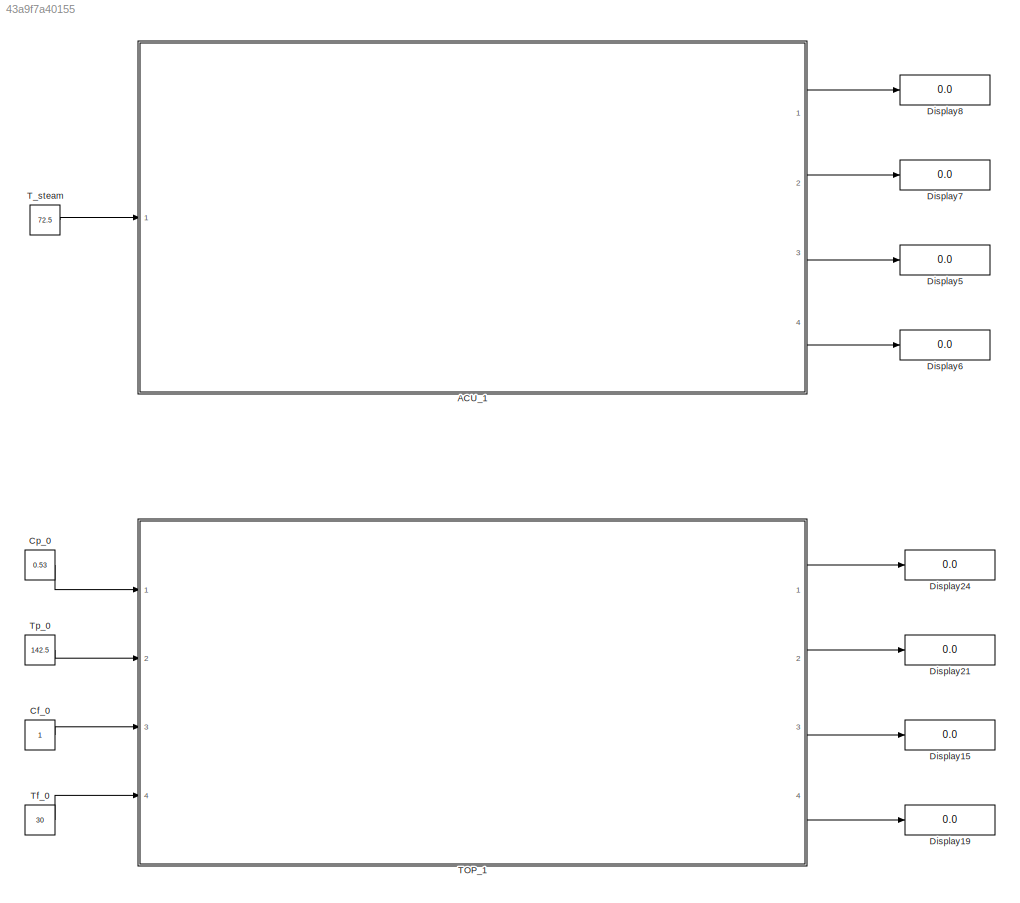
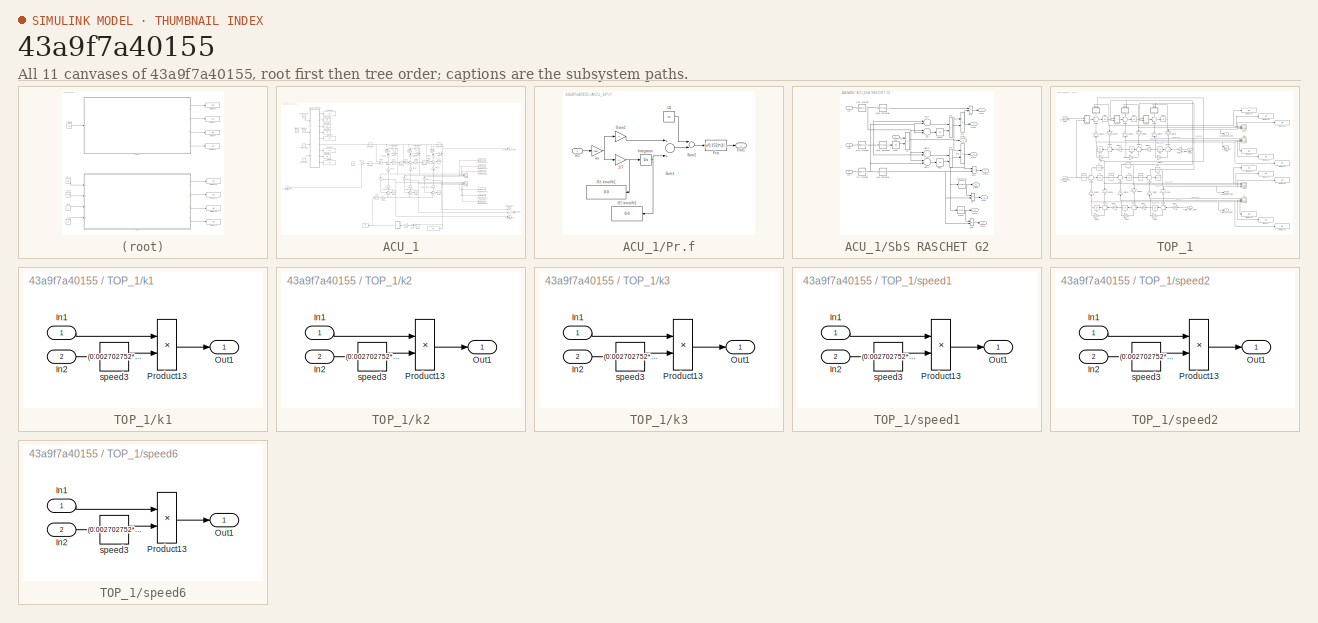
[diagram: thumbnail index - all 11 canvases of the model, root first then tree order]
MODEL slx_43a9f7a40155
KIND model
CONFIG AbsTol = auto
CONFIG EnableMultiTasking = off
CONFIG FixedStep = auto
CONFIG MaxStep = auto
CONFIG MinStep = auto
CONFIG RelTol = 1e-3
CONFIG SampleTimeConstraint = Unconstrained
CONFIG Solver = VariableStepAuto
CONFIG SolverName = VariableStepAuto
CONFIG StartTime = 0.0
CONFIG StopTime = 10000.0
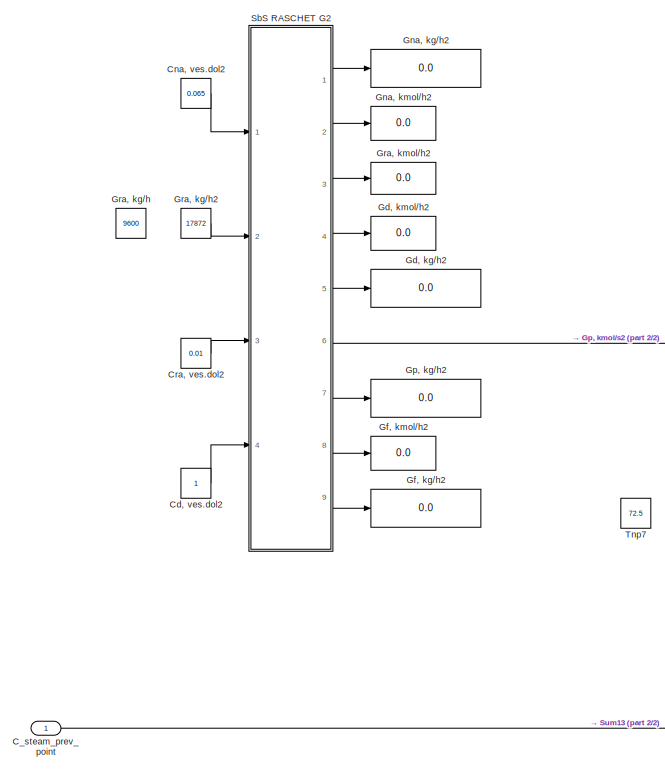
[diagram: ACU_1 - part 1/2, middle left region]
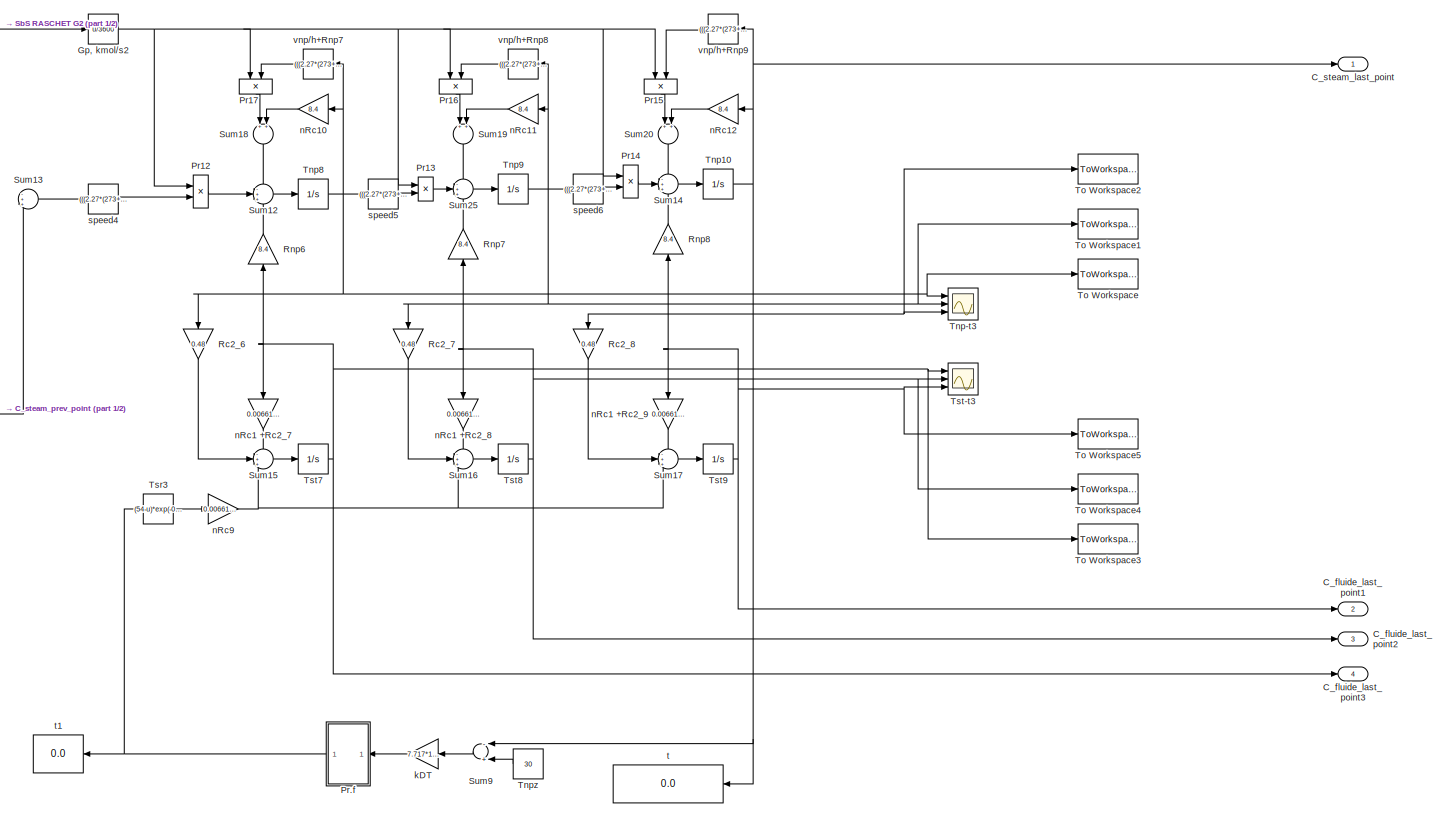
[diagram: ACU_1 - part 2/2, central region]
BLOCK [SubSystem] ACU_1
  Ports = [1, 4]
  RequestExecContextInheritance = off
BLOCK [Outport] ACU_1/C_fluide_last_point1
  IconDisplay = Port number
  Port = 2
BLOCK [Outport] ACU_1/C_fluide_last_point2
  IconDisplay = Port number
  Port = 3
BLOCK [Outport] ACU_1/C_fluide_last_point3
  IconDisplay = Port number
  Port = 4
BLOCK [Outport] ACU_1/C_steam_last_point
  IconDisplay = Port number
BLOCK [Inport] ACU_1/C_steam_prev_point
  IconDisplay = Port number
BLOCK [Constant] ACU_1/Cd, ves.dol2
BLOCK [Constant] ACU_1/Cna, ves.dol2
  Value = 0.065
BLOCK [Constant] ACU_1/Cra, ves.dol2
  Value = 0.01
BLOCK [Display] ACU_1/Gd, kg//h2
  Decimation = 1
  Format = long
  Ports = [1]
BLOCK [Display] ACU_1/Gd, kmol//h2
  Decimation = 1
  Ports = [1]
BLOCK [Display] ACU_1/Gf, kg//h2
  Decimation = 1
  Format = long
  Ports = [1]
BLOCK [Display] ACU_1/Gf, kmol//h2
  Decimation = 1
  Ports = [1]
BLOCK [Display] ACU_1/Gna, kg//h2
  Decimation = 1
  Format = long
  Ports = [1]
BLOCK [Display] ACU_1/Gna, kmol//h2
  Decimation = 1
  Ports = [1]
BLOCK [Display] ACU_1/Gp, kg//h2
  Decimation = 1
  Format = long
  Ports = [1]
BLOCK [Fcn] ACU_1/Gp, kmol//s2
  Expr = u/3600
BLOCK [Constant] ACU_1/Gra, kg//h
  Commented = on
  Value = 9600
BLOCK [Constant] ACU_1/Gra, kg//h2
  Value = 17872
BLOCK [Display] ACU_1/Gra, kmol//h2
  Decimation = 1
  Ports = [1]
BLOCK [SubSystem] ACU_1/Pr.f
  Ports = [1, 1]
  RequestExecContextInheritance = off
BLOCK [Gain] ACU_1/Pr.f/1//T
  OutDataTypeStr = Inherit: Inherit via internal rule
  ParamDataTypeStr = Inherit: Inherit via internal rule
  SaturateOnIntegerOverflow = off
BLOCK [Fcn] ACU_1/Pr.f/Fcn
  Expr = (u/0.152)^(1/2)
BLOCK [Gain] ACU_1/Pr.f/Gain1
  OutDataTypeStr = Inherit: Inherit via internal rule
  ParamDataTypeStr = Inherit: Inherit via internal rule
  SaturateOnIntegerOverflow = off
BLOCK [Display] ACU_1/Pr.f/Gf, kmol//h1
  Decimation = 1
  Ports = [1]
BLOCK [Display] ACU_1/Pr.f/Gf, kmol//h2
  Decimation = 1
  Ports = [1]
BLOCK [Inport] ACU_1/Pr.f/In1
  IconDisplay = Port number
BLOCK [Integrator] ACU_1/Pr.f/Integrator
  InitialCondition = 403.6
  Ports = [1, 1]
BLOCK [Outport] ACU_1/Pr.f/Out1
  IconDisplay = Port number
BLOCK [Sum] ACU_1/Pr.f/Sum1
  InputSameDT = off
  OutDataTypeStr = Inherit: Inherit via internal rule
  Ports = [2, 1]
  SaturateOnIntegerOverflow = off
BLOCK [Sum] ACU_1/Pr.f/Sum2
  InputSameDT = off
  Inputs = -+
  OutDataTypeStr = Inherit: Inherit via internal rule
  Ports = [2, 1]
  SaturateOnIntegerOverflow = off
BLOCK [Constant] ACU_1/Pr.f/U1
  Value = 380
BLOCK [Gain] ACU_1/Pr.f/kn
  Gain = 4300
  OutDataTypeStr = Inherit: Inherit via internal rule
  ParamDataTypeStr = Inherit: Inherit via internal rule
  SaturateOnIntegerOverflow = off
BLOCK [Product] ACU_1/Pr12
  InputSameDT = off
  OutDataTypeStr = Inherit: Inherit via internal rule
  Ports = [2, 1]
  SaturateOnIntegerOverflow = off
BLOCK [Product] ACU_1/Pr13
  InputSameDT = off
  OutDataTypeStr = Inherit: Inherit via internal rule
  Ports = [2, 1]
  SaturateOnIntegerOverflow = off
BLOCK [Product] ACU_1/Pr14
  InputSameDT = off
  OutDataTypeStr = Inherit: Inherit via internal rule
  Ports = [2, 1]
  SaturateOnIntegerOverflow = off
BLOCK [Product] ACU_1/Pr15
  InputSameDT = off
  OutDataTypeStr = Inherit: Inherit via internal rule
  Ports = [2, 1]
  SaturateOnIntegerOverflow = off
BLOCK [Product] ACU_1/Pr16
  InputSameDT = off
  OutDataTypeStr = Inherit: Inherit via internal rule
  Ports = [2, 1]
  SaturateOnIntegerOverflow = off
BLOCK [Product] ACU_1/Pr17
  InputSameDT = off
  OutDataTypeStr = Inherit: Inherit via internal rule
  Ports = [2, 1]
  SaturateOnIntegerOverflow = off
BLOCK [Gain] ACU_1/Rc2_6
  Gain = 0.48
  OutDataTypeStr = Inherit: Inherit via internal rule
  ParamDataTypeStr = Inherit: Inherit via internal rule
  SaturateOnIntegerOverflow = off
BLOCK [Gain] ACU_1/Rc2_7
  Gain = 0.48
  OutDataTypeStr = Inherit: Inherit via internal rule
  ParamDataTypeStr = Inherit: Inherit via internal rule
  SaturateOnIntegerOverflow = off
BLOCK [Gain] ACU_1/Rc2_8
  Gain = 0.48
  OutDataTypeStr = Inherit: Inherit via internal rule
  ParamDataTypeStr = Inherit: Inherit via internal rule
  SaturateOnIntegerOverflow = off
BLOCK [Gain] ACU_1/Rnp6
  Gain = 8.4
  OutDataTypeStr = Inherit: Inherit via internal rule
  ParamDataTypeStr = Inherit: Inherit via internal rule
  SaturateOnIntegerOverflow = off
BLOCK [Gain] ACU_1/Rnp7
  Gain = 8.4
  OutDataTypeStr = Inherit: Inherit via internal rule
  ParamDataTypeStr = Inherit: Inherit via internal rule
  SaturateOnIntegerOverflow = off
BLOCK [Gain] ACU_1/Rnp8
  Gain = 8.4
  OutDataTypeStr = Inherit: Inherit via internal rule
  ParamDataTypeStr = Inherit: Inherit via internal rule
  SaturateOnIntegerOverflow = off
BLOCK [SubSystem] ACU_1/SbS RASCHET G2
  Ports = [4, 9]
  RequestExecContextInheritance = off
BLOCK [Fcn] ACU_1/SbS RASCHET G2/Cd, mol.dol
  Expr = (u/18.02)/((u/18.02)+((1-u)/106.12))
BLOCK [Fcn] ACU_1/SbS RASCHET G2/Cna, mol.dol
  Expr = (u/18.02)/((u/18.02)+((1-u)/106.12))
BLOCK [Fcn] ACU_1/SbS RASCHET G2/Cra, mol.dol
  Expr = (u/18.02)/((u/18.02)+((1-u)/106.12))
BLOCK [Fcn] ACU_1/SbS RASCHET G2/Fcn1
  Expr = 1/u
BLOCK [Fcn] ACU_1/SbS RASCHET G2/Fcn10
  Expr = 1/u
BLOCK [Fcn] ACU_1/SbS RASCHET G2/Fcn6
  Expr = 1/u
BLOCK [Fcn] ACU_1/SbS RASCHET G2/Gd*(R+1)
  Expr = u*(0.5+1)
BLOCK [Fcn] ACU_1/SbS RASCHET G2/Gd*R
  Expr = u*0.5
BLOCK [Inport] ACU_1/SbS RASCHET G2/In1
  IconDisplay = Port number
BLOCK [Inport] ACU_1/SbS RASCHET G2/In2
  IconDisplay = Port number
  Port = 2
BLOCK [Inport] ACU_1/SbS RASCHET G2/In3
  IconDisplay = Port number
  Port = 3
BLOCK [Inport] ACU_1/SbS RASCHET G2/In4
  IconDisplay = Port number
  Port = 4
BLOCK [Fcn] ACU_1/SbS RASCHET G2/Md, kg//kmol
  Expr = 18.02*u+106.12*(1-u)
BLOCK [Fcn] ACU_1/SbS RASCHET G2/Mna, kg//kmol1
  Expr = 18.02*u+106.12*(1-u)
BLOCK [Fcn] ACU_1/SbS RASCHET G2/Mra, kg//kmol
  Expr = 18.02*u+106.12*(1-u)
BLOCK [Outport] ACU_1/SbS RASCHET G2/Out1
  IconDisplay = Port number
BLOCK [Outport] ACU_1/SbS RASCHET G2/Out2
  IconDisplay = Port number
  Port = 2
BLOCK [Outport] ACU_1/SbS RASCHET G2/Out3
  IconDisplay = Port number
  Port = 3
BLOCK [Outport] ACU_1/SbS RASCHET G2/Out4
  IconDisplay = Port number
  Port = 4
BLOCK [Outport] ACU_1/SbS RASCHET G2/Out5
  IconDisplay = Port number
  Port = 5
BLOCK [Outport] ACU_1/SbS RASCHET G2/Out6
  IconDisplay = Port number
  Port = 6
BLOCK [Outport] ACU_1/SbS RASCHET G2/Out7
  IconDisplay = Port number
  Port = 7
BLOCK [Outport] ACU_1/SbS RASCHET G2/Out8
  IconDisplay = Port number
  Port = 8
BLOCK [Outport] ACU_1/SbS RASCHET G2/Out9
  IconDisplay = Port number
  Port = 9
BLOCK [Product] ACU_1/SbS RASCHET G2/Pr
  InputSameDT = off
  OutDataTypeStr = Inherit: Inherit via internal rule
  Ports = [2, 1]
  SaturateOnIntegerOverflow = off
BLOCK [Product] ACU_1/SbS RASCHET G2/Pr1
  InputSameDT = off
  OutDataTypeStr = Inherit: Inherit via internal rule
  Ports = [2, 1]
  SaturateOnIntegerOverflow = off
BLOCK [Product] ACU_1/SbS RASCHET G2/Pr2
  InputSameDT = off
  OutDataTypeStr = Inherit: Inherit via internal rule
  Ports = [2, 1]
  SaturateOnIntegerOverflow = off
BLOCK [Product] ACU_1/SbS RASCHET G2/Pr3
  InputSameDT = off
  OutDataTypeStr = Inherit: Inherit via internal rule
  Ports = [2, 1]
  SaturateOnIntegerOverflow = off
BLOCK [Product] ACU_1/SbS RASCHET G2/Pr4
  InputSameDT = off
  OutDataTypeStr = Inherit: Inherit via internal rule
  Ports = [2, 1]
  SaturateOnIntegerOverflow = off
BLOCK [Product] ACU_1/SbS RASCHET G2/Pr5
  InputSameDT = off
  OutDataTypeStr = Inherit: Inherit via internal rule
  Ports = [2, 1]
  SaturateOnIntegerOverflow = off
BLOCK [Product] ACU_1/SbS RASCHET G2/Pr6
  InputSameDT = off
  OutDataTypeStr = Inherit: Inherit via internal rule
  Ports = [2, 1]
  SaturateOnIntegerOverflow = off
BLOCK [Product] ACU_1/SbS RASCHET G2/Pr7
  InputSameDT = off
  OutDataTypeStr = Inherit: Inherit via internal rule
  Ports = [2, 1]
  SaturateOnIntegerOverflow = off
BLOCK [Product] ACU_1/SbS RASCHET G2/Pr8
  InputSameDT = off
  OutDataTypeStr = Inherit: Inherit via internal rule
  Ports = [2, 1]
  SaturateOnIntegerOverflow = off
BLOCK [Sum] ACU_1/SbS RASCHET G2/Sbtr2
  InputSameDT = off
  Inputs = +-
  OutDataTypeStr = Inherit: Inherit via internal rule
  Ports = [2, 1]
  SaturateOnIntegerOverflow = off
BLOCK [Sum] ACU_1/SbS RASCHET G2/Sbtr3
  InputSameDT = off
  Inputs = -+
  OutDataTypeStr = Inherit: Inherit via internal rule
  Ports = [2, 1]
  SaturateOnIntegerOverflow = off
BLOCK [Sum] ACU_1/SbS RASCHET G2/Str
  InputSameDT = off
  Inputs = -+
  OutDataTypeStr = Inherit: Inherit via internal rule
  Ports = [2, 1]
  SaturateOnIntegerOverflow = off
BLOCK [Sum] ACU_1/SbS RASCHET G2/Str1
  InputSameDT = off
  Inputs = -+
  OutDataTypeStr = Inherit: Inherit via internal rule
  Ports = [2, 1]
  SaturateOnIntegerOverflow = off
BLOCK [Sum] ACU_1/Sum12
  IconShape = round
  InputSameDT = off
  Inputs = -++
  OutDataTypeStr = Inherit: Inherit via internal rule
  Ports = [3, 1]
  SaturateOnIntegerOverflow = off
BLOCK [Sum] ACU_1/Sum13
  IconShape = round
  InputSameDT = off
  Inputs = -++
  OutDataTypeStr = Inherit: Inherit via internal rule
  Ports = [3, 1]
  SaturateOnIntegerOverflow = off
BLOCK [Sum] ACU_1/Sum14
  IconShape = round
  InputSameDT = off
  Inputs = -++
  OutDataTypeStr = Inherit: Inherit via internal rule
  Ports = [3, 1]
  SaturateOnIntegerOverflow = off
BLOCK [Sum] ACU_1/Sum15
  IconShape = round
  InputSameDT = off
  Inputs = -++
  OutDataTypeStr = Inherit: Inherit via internal rule
  Ports = [3, 1]
  SaturateOnIntegerOverflow = off
BLOCK [Sum] ACU_1/Sum16
  IconShape = round
  InputSameDT = off
  Inputs = -++
  OutDataTypeStr = Inherit: Inherit via internal rule
  Ports = [3, 1]
  SaturateOnIntegerOverflow = off
BLOCK [Sum] ACU_1/Sum17
  IconShape = round
  InputSameDT = off
  Inputs = -++
  OutDataTypeStr = Inherit: Inherit via internal rule
  Ports = [3, 1]
  SaturateOnIntegerOverflow = off
BLOCK [Sum] ACU_1/Sum18
  InputSameDT = off
  OutDataTypeStr = Inherit: Inherit via internal rule
  Ports = [2, 1]
  SaturateOnIntegerOverflow = off
BLOCK [Sum] ACU_1/Sum19
  InputSameDT = off
  OutDataTypeStr = Inherit: Inherit via internal rule
  Ports = [2, 1]
  SaturateOnIntegerOverflow = off
BLOCK [Sum] ACU_1/Sum20
  InputSameDT = off
  OutDataTypeStr = Inherit: Inherit via internal rule
  Ports = [2, 1]
  SaturateOnIntegerOverflow = off
BLOCK [Sum] ACU_1/Sum25
  IconShape = round
  InputSameDT = off
  Inputs = -++
  OutDataTypeStr = Inherit: Inherit via internal rule
  Ports = [3, 1]
  SaturateOnIntegerOverflow = off
BLOCK [Sum] ACU_1/Sum9
  InputSameDT = off
  Inputs = -+
  OutDataTypeStr = Inherit: Inherit via internal rule
  Ports = [2, 1]
  SaturateOnIntegerOverflow = off
BLOCK [Scope] ACU_1/Tnp-t3
  Floating = off
  NumInputPorts = 3
  Ports = [3]
  ScopeSpecificationString = Simulink.scopes.TimeScopeBlockCfg('CurrentConfiguration', extmgr.ConfigurationSet(extmgr.Configuration('Core','General UI',true),extmgr.Configuration('Core','Source UI',true),extmgr.Configuration('Sources','WiredSimulink',true,'DataLoggingSaveFormat','StructureWithTime','DataLoggingLimitDataPoints',true,'DataLoggingDecimation','1','DataLoggingDecimateData',true,'DataLoggingVariableName','ScopeData...<+3051ch>
BLOCK [Integrator] ACU_1/Tnp10
  InitialCondition = 49.99550000
  Ports = [1, 1]
BLOCK [Constant] ACU_1/Tnp7
  Value = 72.5
BLOCK [Integrator] ACU_1/Tnp8
  InitialCondition = 64.99850000
  Ports = [1, 1]
BLOCK [Integrator] ACU_1/Tnp9
  InitialCondition = 57.49700000
  Ports = [1, 1]
BLOCK [Constant] ACU_1/Tnpz
  Value = 30
BLOCK [ToWorkspace] ACU_1/To Workspace
  FixptAsFi = on
  MaxDataPoints = inf
  Ports = [1]
  SampleTime = -1
  Save2DSignal = 3-D array (concatenate along third dimension)
  SaveFormat = Structure With Time
  VariableName = TV_AVO
BLOCK [ToWorkspace] ACU_1/To Workspace1
  FixptAsFi = on
  MaxDataPoints = inf
  Ports = [1]
  SampleTime = -1
  Save2DSignal = 3-D array (concatenate along third dimension)
  SaveFormat = Structure With Time
  VariableName = TV_AVO1
BLOCK [ToWorkspace] ACU_1/To Workspace2
  FixptAsFi = on
  MaxDataPoints = inf
  Ports = [1]
  SampleTime = -1
  Save2DSignal = 3-D array (concatenate along third dimension)
  SaveFormat = Structure With Time
  VariableName = TV_AVO2
BLOCK [ToWorkspace] ACU_1/To Workspace3
  FixptAsFi = on
  MaxDataPoints = inf
  Ports = [1]
  SampleTime = -1
  Save2DSignal = 3-D array (concatenate along third dimension)
  SaveFormat = Structure With Time
  VariableName = TST_AVO
BLOCK [ToWorkspace] ACU_1/To Workspace4
  FixptAsFi = on
  MaxDataPoints = inf
  Ports = [1]
  SampleTime = -1
  Save2DSignal = 3-D array (concatenate along third dimension)
  SaveFormat = Structure With Time
  VariableName = TST_AVO1
BLOCK [ToWorkspace] ACU_1/To Workspace5
  FixptAsFi = on
  MaxDataPoints = inf
  Ports = [1]
  SampleTime = -1
  Save2DSignal = 3-D array (concatenate along third dimension)
  SaveFormat = Structure With Time
  VariableName = TST_AVO2
BLOCK [Fcn] ACU_1/Tsr3
  Expr = (54-u)*exp(-0.06*101.25)+u
BLOCK [Scope] ACU_1/Tst-t3
  Floating = off
  NumInputPorts = 3
  Ports = [3]
  ScopeSpecificationString = Simulink.scopes.TimeScopeBlockCfg('CurrentConfiguration', extmgr.ConfigurationSet(extmgr.Configuration('Core','General UI',true),extmgr.Configuration('Core','Source UI',true),extmgr.Configuration('Sources','WiredSimulink',true,'DataLoggingVariableName','ScopeData6','DataLoggingSaveFormat','StructureWithTime','DataLoggingLimitDataPoints',true,'DataLoggingDecimation','1','DataLoggingDecimateData',tr...<+3056ch>
BLOCK [Integrator] ACU_1/Tst7
  InitialCondition = 30.749212884999000
  Ports = [1, 1]
BLOCK [Integrator] ACU_1/Tst8
  InitialCondition = 26.338794670104530
  Ports = [1, 1]
BLOCK [Integrator] ACU_1/Tst9
  InitialCondition = 23.289742144317184
  Ports = [1, 1]
BLOCK [Gain] ACU_1/kDT
  Gain = 7.717*10^(-5)
  OutDataTypeStr = Inherit: Inherit via internal rule
  ParamDataTypeStr = Inherit: Inherit via internal rule
  SaturateOnIntegerOverflow = off
BLOCK [Gain] ACU_1/nRc1 +Rc2_7
  Gain = 0.00661*134+0.48
  OutDataTypeStr = Inherit: Inherit via internal rule
  ParamDataTypeStr = Inherit: Inherit via internal rule
  SaturateOnIntegerOverflow = off
BLOCK [Gain] ACU_1/nRc1 +Rc2_8
  Gain = 0.00661*134+0.48
  OutDataTypeStr = Inherit: Inherit via internal rule
  ParamDataTypeStr = Inherit: Inherit via internal rule
  SaturateOnIntegerOverflow = off
BLOCK [Gain] ACU_1/nRc1 +Rc2_9
  Gain = 0.00661*134+0.48
  OutDataTypeStr = Inherit: Inherit via internal rule
  ParamDataTypeStr = Inherit: Inherit via internal rule
  SaturateOnIntegerOverflow = off
BLOCK [Gain] ACU_1/nRc10
  Gain = 8.4
  OutDataTypeStr = Inherit: Inherit via internal rule
  ParamDataTypeStr = Inherit: Inherit via internal rule
  SaturateOnIntegerOverflow = off
BLOCK [Gain] ACU_1/nRc11
  Gain = 8.4
  OutDataTypeStr = Inherit: Inherit via internal rule
  ParamDataTypeStr = Inherit: Inherit via internal rule
  SaturateOnIntegerOverflow = off
BLOCK [Gain] ACU_1/nRc12
  Gain = 8.4
  OutDataTypeStr = Inherit: Inherit via internal rule
  ParamDataTypeStr = Inherit: Inherit via internal rule
  SaturateOnIntegerOverflow = off
BLOCK [Gain] ACU_1/nRc9
  Gain = 0.00661*134
  OutDataTypeStr = Inherit: Inherit via internal rule
  ParamDataTypeStr = Inherit: Inherit via internal rule
  SaturateOnIntegerOverflow = off
BLOCK [Fcn] ACU_1/speed4
  Expr = (((2.27*(273+u))/1.4184)/1.333)*u
BLOCK [Fcn] ACU_1/speed5
  Expr = (((2.27*(273+u))/1.4184)/1.333)*u
BLOCK [Fcn] ACU_1/speed6
  Expr = (((2.27*(273+u))/1.4184)/1.333)*u
BLOCK [Display] ACU_1/t
  Decimation = 1
  Ports = [1]
BLOCK [Display] ACU_1/t1
  Decimation = 1
  Ports = [1]
BLOCK [Fcn] ACU_1/vnp//h+Rnp7
  Expr = (((2.27*(273+u))/1.4184)/1.333)*u
BLOCK [Fcn] ACU_1/vnp//h+Rnp8
  Expr = (((2.27*(273+u))/1.4184)/1.333)*u
BLOCK [Fcn] ACU_1/vnp//h+Rnp9
  Expr = (((2.27*(273+u))/1.4184)/1.333)*u
BLOCK [Constant] Cf_0
  Commented = on
BLOCK [Constant] Cp_0
  Commented = on
  Value = 0.53
BLOCK [Display] Display15
  Commented = on
  Decimation = 1
  Ports = [1]
BLOCK [Display] Display19
  Commented = on
  Decimation = 1
  Ports = [1]
BLOCK [Display] Display21
  Commented = on
  Decimation = 1
  Ports = [1]
BLOCK [Display] Display24
  Commented = on
  Decimation = 1
  Ports = [1]
BLOCK [Display] Display5
  Decimation = 1
  Ports = [1]
BLOCK [Display] Display6
  Decimation = 1
  Ports = [1]
BLOCK [Display] Display7
  Decimation = 1
  Ports = [1]
BLOCK [Display] Display8
  Decimation = 1
  Ports = [1]
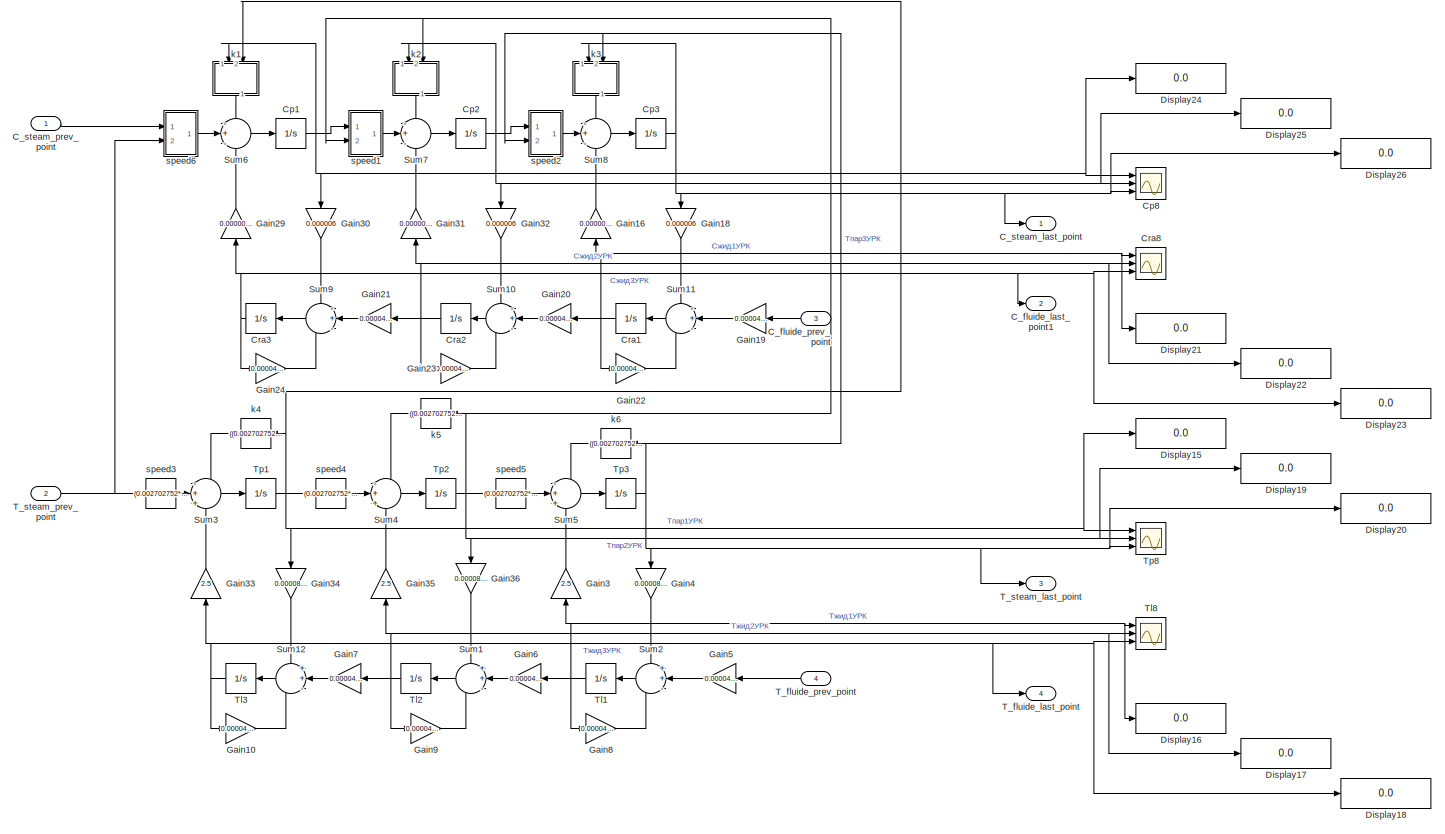
[diagram: TOP_1 - part 1/1, most of the canvas]
BLOCK [SubSystem] TOP_1
  Commented = on
  Ports = [4, 4]
  RequestExecContextInheritance = off
BLOCK [Outport] TOP_1/C_fluide_last_point1
  IconDisplay = Port number
  Port = 2
BLOCK [Inport] TOP_1/C_fluide_prev_point
  IconDisplay = Port number
  Port = 3
BLOCK [Outport] TOP_1/C_steam_last_point
  IconDisplay = Port number
BLOCK [Inport] TOP_1/C_steam_prev_point
  IconDisplay = Port number
BLOCK [Integrator] TOP_1/Cp1
  InitialCondition = 0.68200000
  Ports = [1, 1]
BLOCK [Integrator] TOP_1/Cp2
  InitialCondition = 0.83400000
  Ports = [1, 1]
BLOCK [Integrator] TOP_1/Cp3
  InitialCondition = 0.98600000
  Ports = [1, 1]
BLOCK [Scope] TOP_1/Cp8
  Floating = off
  NumInputPorts = 3
  Ports = [3]
  ScopeSpecificationString = Simulink.scopes.TimeScopeBlockCfg('CurrentConfiguration', extmgr.ConfigurationSet(extmgr.Configuration('Core','General UI',true,'FigureColor',[1 1 1]),extmgr.Configuration('Core','Source UI',true),extmgr.Configuration('Sources','WiredSimulink',true,'DataLogging',true,'DataLoggingVariableName','ScopeData25','DataLoggingSaveFormat','Structure','SampleTime','0','DataLoggingDecimation','1','DataLoggin...<+4946ch>
BLOCK [Integrator] TOP_1/Cra1
  InitialCondition = 0.88825000
  Ports = [1, 1]
BLOCK [Integrator] TOP_1/Cra2
  InitialCondition = 0.77650000
  Ports = [1, 1]
BLOCK [Integrator] TOP_1/Cra3
  InitialCondition = 0.66475000
  Ports = [1, 1]
BLOCK [Scope] TOP_1/Cra8
  Floating = off
  NumInputPorts = 3
  Ports = [3]
  ScopeSpecificationString = Simulink.scopes.TimeScopeBlockCfg('CurrentConfiguration', extmgr.ConfigurationSet(extmgr.Configuration('Core','General UI',true,'FigureColor',[1 1 1]),extmgr.Configuration('Core','Source UI',true),extmgr.Configuration('Sources','WiredSimulink',true,'DataLogging',true,'DataLoggingVariableName','ScopeData26','DataLoggingSaveFormat','StructureWithTime','SampleTime','0','DataLoggingDecimation','1','Da...<+4963ch>
BLOCK [Display] TOP_1/Display15
  Decimation = 1
  Ports = [1]
BLOCK [Display] TOP_1/Display16
  Decimation = 1
  Ports = [1]
BLOCK [Display] TOP_1/Display17
  Decimation = 1
  Ports = [1]
BLOCK [Display] TOP_1/Display18
  Decimation = 1
  Ports = [1]
BLOCK [Display] TOP_1/Display19
  Decimation = 1
  Ports = [1]
BLOCK [Display] TOP_1/Display20
  Decimation = 1
  Ports = [1]
BLOCK [Display] TOP_1/Display21
  Decimation = 1
  Ports = [1]
BLOCK [Display] TOP_1/Display22
  Decimation = 1
  Ports = [1]
BLOCK [Display] TOP_1/Display23
  Decimation = 1
  Ports = [1]
BLOCK [Display] TOP_1/Display24
  Decimation = 1
  Ports = [1]
BLOCK [Display] TOP_1/Display25
  Decimation = 1
  Ports = [1]
BLOCK [Display] TOP_1/Display26
  Decimation = 1
  Ports = [1]
BLOCK [Gain] TOP_1/Gain10
  Gain = 0.00004/1.17+0.0000855
  OutDataTypeStr = Inherit: Inherit via internal rule
  ParamDataTypeStr = Inherit: Inherit via internal rule
  SaturateOnIntegerOverflow = off
BLOCK [Gain] TOP_1/Gain16
  Gain = 0.000000000145
  OutDataTypeStr = Inherit: Inherit via internal rule
  ParamDataTypeStr = Inherit: Inherit via internal rule
  SaturateOnIntegerOverflow = off
BLOCK [Gain] TOP_1/Gain18
  Gain = 0.000006
  OutDataTypeStr = Inherit: Inherit via internal rule
  ParamDataTypeStr = Inherit: Inherit via internal rule
  SaturateOnIntegerOverflow = off
BLOCK [Gain] TOP_1/Gain19
  Gain = 0.00004/1.17
  OutDataTypeStr = Inherit: Inherit via internal rule
  ParamDataTypeStr = Inherit: Inherit via internal rule
  SaturateOnIntegerOverflow = off
BLOCK [Gain] TOP_1/Gain20
  Gain = 0.00004/1.17
  OutDataTypeStr = Inherit: Inherit via internal rule
  ParamDataTypeStr = Inherit: Inherit via internal rule
  SaturateOnIntegerOverflow = off
BLOCK [Gain] TOP_1/Gain21
  Gain = 0.00004/1.17
  OutDataTypeStr = Inherit: Inherit via internal rule
  ParamDataTypeStr = Inherit: Inherit via internal rule
  SaturateOnIntegerOverflow = off
BLOCK [Gain] TOP_1/Gain22
  Gain = 0.00004/1.17-(0.000006*0.000000000145)
  OutDataTypeStr = Inherit: Inherit via internal rule
  ParamDataTypeStr = Inherit: Inherit via internal rule
  SaturateOnIntegerOverflow = off
BLOCK [Gain] TOP_1/Gain23
  Gain = 0.00004/1.17-(0.000006*0.000000000145)
  OutDataTypeStr = Inherit: Inherit via internal rule
  ParamDataTypeStr = Inherit: Inherit via internal rule
  SaturateOnIntegerOverflow = off
BLOCK [Gain] TOP_1/Gain24
  Gain = 0.00004/1.17-(0.000006*0.000000000145)
  OutDataTypeStr = Inherit: Inherit via internal rule
  ParamDataTypeStr = Inherit: Inherit via internal rule
  SaturateOnIntegerOverflow = off
BLOCK [Gain] TOP_1/Gain29
  Gain = 0.000000000145
  OutDataTypeStr = Inherit: Inherit via internal rule
  ParamDataTypeStr = Inherit: Inherit via internal rule
  SaturateOnIntegerOverflow = off
BLOCK [Gain] TOP_1/Gain3
  Gain = 2.5
  OutDataTypeStr = Inherit: Inherit via internal rule
  ParamDataTypeStr = Inherit: Inherit via internal rule
  SaturateOnIntegerOverflow = off
BLOCK [Gain] TOP_1/Gain30
  Gain = 0.000006
  OutDataTypeStr = Inherit: Inherit via internal rule
  ParamDataTypeStr = Inherit: Inherit via internal rule
  SaturateOnIntegerOverflow = off
BLOCK [Gain] TOP_1/Gain31
  Gain = 0.000000000145
  OutDataTypeStr = Inherit: Inherit via internal rule
  ParamDataTypeStr = Inherit: Inherit via internal rule
  SaturateOnIntegerOverflow = off
BLOCK [Gain] TOP_1/Gain32
  Gain = 0.000006
  OutDataTypeStr = Inherit: Inherit via internal rule
  ParamDataTypeStr = Inherit: Inherit via internal rule
  SaturateOnIntegerOverflow = off
BLOCK [Gain] TOP_1/Gain33
  Gain = 2.5
  OutDataTypeStr = Inherit: Inherit via internal rule
  ParamDataTypeStr = Inherit: Inherit via internal rule
  SaturateOnIntegerOverflow = off
BLOCK [Gain] TOP_1/Gain34
  Gain = 0.0000855
  OutDataTypeStr = Inherit: Inherit via internal rule
  ParamDataTypeStr = Inherit: Inherit via internal rule
  SaturateOnIntegerOverflow = off
BLOCK [Gain] TOP_1/Gain35
  Gain = 2.5
  OutDataTypeStr = Inherit: Inherit via internal rule
  ParamDataTypeStr = Inherit: Inherit via internal rule
  SaturateOnIntegerOverflow = off
BLOCK [Gain] TOP_1/Gain36
  Gain = 0.0000855
  OutDataTypeStr = Inherit: Inherit via internal rule
  ParamDataTypeStr = Inherit: Inherit via internal rule
  SaturateOnIntegerOverflow = off
BLOCK [Gain] TOP_1/Gain4
  Gain = 0.0000855
  OutDataTypeStr = Inherit: Inherit via internal rule
  ParamDataTypeStr = Inherit: Inherit via internal rule
  SaturateOnIntegerOverflow = off
BLOCK [Gain] TOP_1/Gain5
  Gain = 0.00004/1.17
  OutDataTypeStr = Inherit: Inherit via internal rule
  ParamDataTypeStr = Inherit: Inherit via internal rule
  SaturateOnIntegerOverflow = off
BLOCK [Gain] TOP_1/Gain6
  Gain = 0.00004/1.17
  OutDataTypeStr = Inherit: Inherit via internal rule
  ParamDataTypeStr = Inherit: Inherit via internal rule
  SaturateOnIntegerOverflow = off
BLOCK [Gain] TOP_1/Gain7
  Gain = 0.00004/1.17
  OutDataTypeStr = Inherit: Inherit via internal rule
  ParamDataTypeStr = Inherit: Inherit via internal rule
  SaturateOnIntegerOverflow = off
BLOCK [Gain] TOP_1/Gain8
  Gain = 0.00004/1.17+0.0000855
  OutDataTypeStr = Inherit: Inherit via internal rule
  ParamDataTypeStr = Inherit: Inherit via internal rule
  SaturateOnIntegerOverflow = off
BLOCK [Gain] TOP_1/Gain9
  Gain = 0.00004/1.17+0.0000855
  OutDataTypeStr = Inherit: Inherit via internal rule
  ParamDataTypeStr = Inherit: Inherit via internal rule
  SaturateOnIntegerOverflow = off
BLOCK [Sum] TOP_1/Sum1
  IconShape = round
  InputSameDT = off
  Inputs = ++-
  OutDataTypeStr = Inherit: Inherit via internal rule
  Ports = [3, 1]
  SaturateOnIntegerOverflow = off
BLOCK [Sum] TOP_1/Sum10
  IconShape = round
  InputSameDT = off
  Inputs = -+-
  OutDataTypeStr = Inherit: Inherit via internal rule
  Ports = [3, 1]
  SaturateOnIntegerOverflow = off
BLOCK [Sum] TOP_1/Sum11
  IconShape = round
  InputSameDT = off
  Inputs = -+-
  OutDataTypeStr = Inherit: Inherit via internal rule
  Ports = [3, 1]
  SaturateOnIntegerOverflow = off
BLOCK [Sum] TOP_1/Sum12
  IconShape = round
  InputSameDT = off
  Inputs = ++-
  OutDataTypeStr = Inherit: Inherit via internal rule
  Ports = [3, 1]
  SaturateOnIntegerOverflow = off
BLOCK [Sum] TOP_1/Sum2
  IconShape = round
  InputSameDT = off
  Inputs = ++-
  OutDataTypeStr = Inherit: Inherit via internal rule
  Ports = [3, 1]
  SaturateOnIntegerOverflow = off
BLOCK [Sum] TOP_1/Sum3
  IconShape = round
  InputSameDT = off
  Inputs = -++
  OutDataTypeStr = Inherit: Inherit via internal rule
  Ports = [3, 1]
  SaturateOnIntegerOverflow = off
BLOCK [Sum] TOP_1/Sum4
  IconShape = round
  InputSameDT = off
  Inputs = -++
  OutDataTypeStr = Inherit: Inherit via internal rule
  Ports = [3, 1]
  SaturateOnIntegerOverflow = off
BLOCK [Sum] TOP_1/Sum5
  IconShape = round
  InputSameDT = off
  Inputs = -++
  OutDataTypeStr = Inherit: Inherit via internal rule
  Ports = [3, 1]
  SaturateOnIntegerOverflow = off
BLOCK [Sum] TOP_1/Sum6
  IconShape = round
  InputSameDT = off
  Inputs = -+-
  OutDataTypeStr = Inherit: Inherit via internal rule
  Ports = [3, 1]
  SaturateOnIntegerOverflow = off
BLOCK [Sum] TOP_1/Sum7
  IconShape = round
  InputSameDT = off
  Inputs = -+-
  OutDataTypeStr = Inherit: Inherit via internal rule
  Ports = [3, 1]
  SaturateOnIntegerOverflow = off
BLOCK [Sum] TOP_1/Sum8
  IconShape = round
  InputSameDT = off
  Inputs = -+-
  OutDataTypeStr = Inherit: Inherit via internal rule
  Ports = [3, 1]
  SaturateOnIntegerOverflow = off
BLOCK [Sum] TOP_1/Sum9
  IconShape = round
  InputSameDT = off
  Inputs = -+-
  OutDataTypeStr = Inherit: Inherit via internal rule
  Ports = [3, 1]
  SaturateOnIntegerOverflow = off
BLOCK [Outport] TOP_1/T_fluide_last_point
  IconDisplay = Port number
  Port = 4
BLOCK [Inport] TOP_1/T_fluide_prev_point
  IconDisplay = Port number
  Port = 4
BLOCK [Outport] TOP_1/T_steam_last_point
  IconDisplay = Port number
  Port = 3
BLOCK [Inport] TOP_1/T_steam_prev_point
  IconDisplay = Port number
  Port = 2
BLOCK [Integrator] TOP_1/Tl1
  InitialCondition = 57.25000000
  Ports = [1, 1]
BLOCK [Integrator] TOP_1/Tl2
  InitialCondition = 84.50000000
  Ports = [1, 1]
BLOCK [Integrator] TOP_1/Tl3
  InitialCondition = 111.75000000
  Ports = [1, 1]
BLOCK [Scope] TOP_1/Tl8
  Floating = off
  NumInputPorts = 3
  Ports = [3]
  ScopeSpecificationString = Simulink.scopes.TimeScopeBlockCfg('CurrentConfiguration', extmgr.ConfigurationSet(extmgr.Configuration('Core','General UI',true,'FigureColor',[1 1 1]),extmgr.Configuration('Core','Source UI',true),extmgr.Configuration('Sources','WiredSimulink',true,'DataLogging',true,'DataLoggingVariableName','ScopeData27','DataLoggingSaveFormat','StructureWithTime','SampleTime','0','DataLoggingDecimation','1','Da...<+4974ch>
BLOCK [Integrator] TOP_1/Tp1
  InitialCondition = 118.20000000
  Ports = [1, 1]
BLOCK [Integrator] TOP_1/Tp2
  InitialCondition = 93.90000000
  Ports = [1, 1]
BLOCK [Integrator] TOP_1/Tp3
  IgnoreLimit = on
  InitialCondition = 69.60000000
  Ports = [1, 1]
BLOCK [Scope] TOP_1/Tp8
  Floating = off
  NumInputPorts = 3
  Ports = [3]
  ScopeSpecificationString = Simulink.scopes.TimeScopeBlockCfg('CurrentConfiguration', extmgr.ConfigurationSet(extmgr.Configuration('Core','General UI',true,'FigureColor',[1 1 1]),extmgr.Configuration('Core','Source UI',true),extmgr.Configuration('Sources','WiredSimulink',true,'DataLogging',true,'DataLoggingVariableName','ScopeData28','DataLoggingSaveFormat','StructureWithTime','SampleTime','0','DataLoggingDecimation','1','Da...<+4970ch>
BLOCK [SubSystem] TOP_1/k1
  Ports = [2, 1]
  RequestExecContextInheritance = off
BLOCK [Inport] TOP_1/k1/In1
  IconDisplay = Port number
BLOCK [Inport] TOP_1/k1/In2
  IconDisplay = Port number
  Port = 2
BLOCK [Outport] TOP_1/k1/Out1
  IconDisplay = Port number
BLOCK [Product] TOP_1/k1/Product13
  Ports = [2, 1]
  RndMeth = Floor
BLOCK [Fcn] TOP_1/k1/speed3
  Expr = (0.002702752*(273.15+u))/1.17-0.147
BLOCK [SubSystem] TOP_1/k2
  Ports = [2, 1]
  RequestExecContextInheritance = off
BLOCK [Inport] TOP_1/k2/In1
  IconDisplay = Port number
BLOCK [Inport] TOP_1/k2/In2
  IconDisplay = Port number
  Port = 2
BLOCK [Outport] TOP_1/k2/Out1
  IconDisplay = Port number
BLOCK [Product] TOP_1/k2/Product13
  Ports = [2, 1]
  RndMeth = Floor
BLOCK [Fcn] TOP_1/k2/speed3
  Expr = (0.002702752*(273.15+u))/1.17-0.147
BLOCK [SubSystem] TOP_1/k3
  Ports = [2, 1]
  RequestExecContextInheritance = off
BLOCK [Inport] TOP_1/k3/In1
  IconDisplay = Port number
BLOCK [Inport] TOP_1/k3/In2
  IconDisplay = Port number
  Port = 2
BLOCK [Outport] TOP_1/k3/Out1
  IconDisplay = Port number
BLOCK [Product] TOP_1/k3/Product13
  Ports = [2, 1]
  RndMeth = Floor
BLOCK [Fcn] TOP_1/k3/speed3
  Expr = (0.002702752*(273.15+u))/1.17-0.147
BLOCK [Fcn] TOP_1/k4
  Expr = ((0.002702752*(273.15+u))/1.17+2.5)*u
BLOCK [Fcn] TOP_1/k5
  Expr = ((0.002702752*(273.15+u))/1.17+2.5)*u
BLOCK [Fcn] TOP_1/k6
  Expr = ((0.002702752*(273.15+u))/1.17+2.5)*u
BLOCK [SubSystem] TOP_1/speed1
  Ports = [2, 1]
  RequestExecContextInheritance = off
BLOCK [Inport] TOP_1/speed1/In1
  IconDisplay = Port number
BLOCK [Inport] TOP_1/speed1/In2
  IconDisplay = Port number
  Port = 2
BLOCK [Outport] TOP_1/speed1/Out1
  IconDisplay = Port number
BLOCK [Product] TOP_1/speed1/Product13
  Ports = [2, 1]
  RndMeth = Floor
BLOCK [Fcn] TOP_1/speed1/speed3
  Expr = (0.002702752*(273.15+u))/1.17
BLOCK [SubSystem] TOP_1/speed2
  Ports = [2, 1]
  RequestExecContextInheritance = off
BLOCK [Inport] TOP_1/speed2/In1
  IconDisplay = Port number
BLOCK [Inport] TOP_1/speed2/In2
  IconDisplay = Port number
  Port = 2
BLOCK [Outport] TOP_1/speed2/Out1
  IconDisplay = Port number
BLOCK [Product] TOP_1/speed2/Product13
  Ports = [2, 1]
  RndMeth = Floor
BLOCK [Fcn] TOP_1/speed2/speed3
  Expr = (0.002702752*(273.15+u))/1.17
BLOCK [Fcn] TOP_1/speed3
  Expr = (0.002702752*(273.15+u))/1.17*u
BLOCK [Fcn] TOP_1/speed4
  Expr = (0.002702752*(273.15+u))/1.17*u
BLOCK [Fcn] TOP_1/speed5
  Expr = (0.002702752*(273.15+u))/1.17*u
BLOCK [SubSystem] TOP_1/speed6
  Ports = [2, 1]
  RequestExecContextInheritance = off
BLOCK [Inport] TOP_1/speed6/In1
  IconDisplay = Port number
BLOCK [Inport] TOP_1/speed6/In2
  IconDisplay = Port number
  Port = 2
BLOCK [Outport] TOP_1/speed6/Out1
  IconDisplay = Port number
BLOCK [Product] TOP_1/speed6/Product13
  Ports = [2, 1]
  RndMeth = Floor
BLOCK [Fcn] TOP_1/speed6/speed3
  Expr = (0.002702752*(273.15+u))/1.17
BLOCK [Constant] T_steam
  Value = 72.5
BLOCK [Constant] Tf_0
  Commented = on
  Value = 30
BLOCK [Constant] Tp_0
  Commented = on
  Value = 142.5
LINE ACU_1/C_steam_prev_point:1 -> ACU_1/Sum13:3
LINE ACU_1/Cd, ves.dol2:1 -> ACU_1/SbS RASCHET G2:4
LINE ACU_1/Cna, ves.dol2:1 -> ACU_1/SbS RASCHET G2:1
LINE ACU_1/Cra, ves.dol2:1 -> ACU_1/SbS RASCHET G2:3
NET ACU_1/Gp, kmol//s2:1 -> ACU_1/Pr12:1, ACU_1/Pr13:1, ACU_1/Pr14:1, ACU_1/Pr15:1, ACU_1/Pr16:1, ACU_1/Pr17:1
LINE ACU_1/Gra, kg//h2:1 -> ACU_1/SbS RASCHET G2:2
NET ACU_1/Pr.f/1//T:1 -> ACU_1/Pr.f/Gf, kmol//h1:1, ACU_1/Pr.f/Integrator:1
LINE ACU_1/Pr.f/Fcn:1 -> ACU_1/Pr.f/Out1:1
LINE ACU_1/Pr.f/Gain1:1 -> ACU_1/Pr.f/Sum1:1
LINE ACU_1/Pr.f/In1:1 -> ACU_1/Pr.f/kn:1
NET ACU_1/Pr.f/Integrator:1 -> ACU_1/Pr.f/Gf, kmol//h2:1, ACU_1/Pr.f/Sum1:2
LINE ACU_1/Pr.f/Sum1:1 -> ACU_1/Pr.f/Sum2:2
LINE ACU_1/Pr.f/Sum2:1 -> ACU_1/Pr.f/Fcn:1
LINE ACU_1/Pr.f/U1:1 -> ACU_1/Pr.f/Sum2:1
NET ACU_1/Pr.f/kn:1 -> ACU_1/Pr.f/1//T:1, ACU_1/Pr.f/Gain1:1
NET ACU_1/Pr.f:1 -> ACU_1/Tsr3:1, ACU_1/t1:1
LINE ACU_1/Pr12:1 -> ACU_1/Sum12:2
LINE ACU_1/Pr13:1 -> ACU_1/Sum25:2
LINE ACU_1/Pr14:1 -> ACU_1/Sum14:2
LINE ACU_1/Pr15:1 -> ACU_1/Sum20:1
LINE ACU_1/Pr16:1 -> ACU_1/Sum19:1
LINE ACU_1/Pr17:1 -> ACU_1/Sum18:1
LINE ACU_1/Rc2_6:1 -> ACU_1/Sum15:2
LINE ACU_1/Rc2_7:1 -> ACU_1/Sum16:2
LINE ACU_1/Rc2_8:1 -> ACU_1/Sum17:2
LINE ACU_1/Rnp6:1 -> ACU_1/Sum12:3
LINE ACU_1/Rnp7:1 -> ACU_1/Sum25:3
LINE ACU_1/Rnp8:1 -> ACU_1/Sum14:3
NET ACU_1/SbS RASCHET G2/Cd, mol.dol:1 -> ACU_1/SbS RASCHET G2/Md, kg//kmol:1, ACU_1/SbS RASCHET G2/Sbtr2:2, ACU_1/SbS RASCHET G2/Str1:2, ACU_1/SbS RASCHET G2/Str:2
NET ACU_1/SbS RASCHET G2/Cna, mol.dol:1 -> ACU_1/SbS RASCHET G2/Mna, kg//kmol1:1, ACU_1/SbS RASCHET G2/Sbtr2:1, ACU_1/SbS RASCHET G2/Sbtr3:1, ACU_1/SbS RASCHET G2/Str:1
NET ACU_1/SbS RASCHET G2/Cra, mol.dol:1 -> ACU_1/SbS RASCHET G2/Mra, kg//kmol:1, ACU_1/SbS RASCHET G2/Sbtr3:2, ACU_1/SbS RASCHET G2/Str1:1
LINE ACU_1/SbS RASCHET G2/Fcn10:1 -> ACU_1/SbS RASCHET G2/Pr1:2
LINE ACU_1/SbS RASCHET G2/Fcn1:1 -> ACU_1/SbS RASCHET G2/Pr4:2
LINE ACU_1/SbS RASCHET G2/Fcn6:1 -> ACU_1/SbS RASCHET G2/Pr:2
NET ACU_1/SbS RASCHET G2/Gd*(R+1):1 -> ACU_1/SbS RASCHET G2/Out6:1, ACU_1/SbS RASCHET G2/Pr7:1
NET ACU_1/SbS RASCHET G2/Gd*R:1 -> ACU_1/SbS RASCHET G2/Out8:1, ACU_1/SbS RASCHET G2/Pr8:1
LINE ACU_1/SbS RASCHET G2/In1:1 -> ACU_1/SbS RASCHET G2/Cna, mol.dol:1
LINE ACU_1/SbS RASCHET G2/In2:1 -> ACU_1/SbS RASCHET G2/Pr:1
LINE ACU_1/SbS RASCHET G2/In3:1 -> ACU_1/SbS RASCHET G2/Cra, mol.dol:1
LINE ACU_1/SbS RASCHET G2/In4:1 -> ACU_1/SbS RASCHET G2/Cd, mol.dol:1
NET ACU_1/SbS RASCHET G2/Md, kg//kmol:1 -> ACU_1/SbS RASCHET G2/Pr6:2, ACU_1/SbS RASCHET G2/Pr7:2, ACU_1/SbS RASCHET G2/Pr8:2
LINE ACU_1/SbS RASCHET G2/Mna, kg//kmol1:1 -> ACU_1/SbS RASCHET G2/Pr3:1
LINE ACU_1/SbS RASCHET G2/Mra, kg//kmol:1 -> ACU_1/SbS RASCHET G2/Fcn6:1
LINE ACU_1/SbS RASCHET G2/Pr1:1 -> ACU_1/SbS RASCHET G2/Pr2:2
NET ACU_1/SbS RASCHET G2/Pr2:1 -> ACU_1/SbS RASCHET G2/Out2:1, ACU_1/SbS RASCHET G2/Pr3:2
LINE ACU_1/SbS RASCHET G2/Pr3:1 -> ACU_1/SbS RASCHET G2/Out1:1
LINE ACU_1/SbS RASCHET G2/Pr4:1 -> ACU_1/SbS RASCHET G2/Pr5:2
NET ACU_1/SbS RASCHET G2/Pr5:1 -> ACU_1/SbS RASCHET G2/Gd*(R+1):1, ACU_1/SbS RASCHET G2/Gd*R:1, ACU_1/SbS RASCHET G2/Out4:1, ACU_1/SbS RASCHET G2/Pr6:1
LINE ACU_1/SbS RASCHET G2/Pr6:1 -> ACU_1/SbS RASCHET G2/Out5:1
LINE ACU_1/SbS RASCHET G2/Pr7:1 -> ACU_1/SbS RASCHET G2/Out7:1
LINE ACU_1/SbS RASCHET G2/Pr8:1 -> ACU_1/SbS RASCHET G2/Out9:1
NET ACU_1/SbS RASCHET G2/Pr:1 -> ACU_1/SbS RASCHET G2/Out3:1, ACU_1/SbS RASCHET G2/Pr2:1, ACU_1/SbS RASCHET G2/Pr5:1
LINE ACU_1/SbS RASCHET G2/Sbtr2:1 -> ACU_1/SbS RASCHET G2/Fcn1:1
LINE ACU_1/SbS RASCHET G2/Sbtr3:1 -> ACU_1/SbS RASCHET G2/Pr4:1
LINE ACU_1/SbS RASCHET G2/Str1:1 -> ACU_1/SbS RASCHET G2/Pr1:1
LINE ACU_1/SbS RASCHET G2/Str:1 -> ACU_1/SbS RASCHET G2/Fcn10:1
LINE ACU_1/SbS RASCHET G2:1 -> ACU_1/Gna, kg//h2:1
LINE ACU_1/SbS RASCHET G2:2 -> ACU_1/Gna, kmol//h2:1
LINE ACU_1/SbS RASCHET G2:3 -> ACU_1/Gra, kmol//h2:1
LINE ACU_1/SbS RASCHET G2:4 -> ACU_1/Gd, kmol//h2:1
LINE ACU_1/SbS RASCHET G2:5 -> ACU_1/Gd, kg//h2:1
LINE ACU_1/SbS RASCHET G2:6 -> ACU_1/Gp, kmol//s2:1
LINE ACU_1/SbS RASCHET G2:7 -> ACU_1/Gp, kg//h2:1
LINE ACU_1/SbS RASCHET G2:8 -> ACU_1/Gf, kmol//h2:1
LINE ACU_1/SbS RASCHET G2:9 -> ACU_1/Gf, kg//h2:1
LINE ACU_1/Sum12:1 -> ACU_1/Tnp8:1
LINE ACU_1/Sum13:1 -> ACU_1/speed4:1
LINE ACU_1/Sum14:1 -> ACU_1/Tnp10:1
LINE ACU_1/Sum15:1 -> ACU_1/Tst7:1
LINE ACU_1/Sum16:1 -> ACU_1/Tst8:1
LINE ACU_1/Sum17:1 -> ACU_1/Tst9:1
LINE ACU_1/Sum18:1 -> ACU_1/Sum12:1
LINE ACU_1/Sum19:1 -> ACU_1/Sum25:1
LINE ACU_1/Sum20:1 -> ACU_1/Sum14:1
LINE ACU_1/Sum25:1 -> ACU_1/Tnp9:1
LINE ACU_1/Sum9:1 -> ACU_1/kDT:1
NET ACU_1/Tnp10:1 -> ACU_1/C_steam_last_point:1, ACU_1/Rc2_8:1, ACU_1/Sum9:1, ACU_1/Tnp-t3:3, ACU_1/To Workspace2:1, ACU_1/nRc12:1, ACU_1/t:1, ACU_1/vnp//h+Rnp9:1
NET ACU_1/Tnp8:1 -> ACU_1/Rc2_6:1, ACU_1/Tnp-t3:1, ACU_1/To Workspace:1, ACU_1/nRc10:1, ACU_1/speed5:1, ACU_1/vnp//h+Rnp7:1
NET ACU_1/Tnp9:1 -> ACU_1/Rc2_7:1, ACU_1/Tnp-t3:2, ACU_1/To Workspace1:1, ACU_1/nRc11:1, ACU_1/speed6:1, ACU_1/vnp//h+Rnp8:1
LINE ACU_1/Tnpz:1 -> ACU_1/Sum9:2
LINE ACU_1/Tsr3:1 -> ACU_1/nRc9:1
NET ACU_1/Tst7:1 -> ACU_1/C_fluide_last_point3:1, ACU_1/Rnp6:1, ACU_1/To Workspace3:1, ACU_1/Tst-t3:1, ACU_1/nRc1 +Rc2_7:1
NET ACU_1/Tst8:1 -> ACU_1/C_fluide_last_point2:1, ACU_1/Rnp7:1, ACU_1/To Workspace4:1, ACU_1/Tst-t3:2, ACU_1/nRc1 +Rc2_8:1
NET ACU_1/Tst9:1 -> ACU_1/C_fluide_last_point1:1, ACU_1/Rnp8:1, ACU_1/To Workspace5:1, ACU_1/Tst-t3:3, ACU_1/nRc1 +Rc2_9:1
LINE ACU_1/kDT:1 -> ACU_1/Pr.f:1
LINE ACU_1/nRc1 +Rc2_7:1 -> ACU_1/Sum15:1
LINE ACU_1/nRc1 +Rc2_8:1 -> ACU_1/Sum16:1
LINE ACU_1/nRc1 +Rc2_9:1 -> ACU_1/Sum17:1
LINE ACU_1/nRc10:1 -> ACU_1/Sum18:2
LINE ACU_1/nRc11:1 -> ACU_1/Sum19:2
LINE ACU_1/nRc12:1 -> ACU_1/Sum20:2
NET ACU_1/nRc9:1 -> ACU_1/Sum15:3, ACU_1/Sum16:3, ACU_1/Sum17:3
LINE ACU_1/speed4:1 -> ACU_1/Pr12:2
LINE ACU_1/speed5:1 -> ACU_1/Pr13:2
LINE ACU_1/speed6:1 -> ACU_1/Pr14:2
LINE ACU_1/vnp//h+Rnp7:1 -> ACU_1/Pr17:2
LINE ACU_1/vnp//h+Rnp8:1 -> ACU_1/Pr16:2
LINE ACU_1/vnp//h+Rnp9:1 -> ACU_1/Pr15:2
LINE ACU_1:1 -> Display8:1
LINE ACU_1:2 -> Display7:1
LINE ACU_1:3 -> Display5:1
LINE ACU_1:4 -> Display6:1
LINE Cf_0:1 -> TOP_1:3
LINE Cp_0:1 -> TOP_1:1
LINE TOP_1/C_fluide_prev_point:1 -> TOP_1/Gain19:1
LINE TOP_1/C_steam_prev_point:1 -> TOP_1/speed6:1
NET TOP_1/Cp1:1 -> TOP_1/Cp8:1, TOP_1/Display24:1, TOP_1/Gain30:1, TOP_1/k1:1, TOP_1/speed1:1
NET TOP_1/Cp2:1 -> TOP_1/Cp8:2, TOP_1/Display25:1, TOP_1/Gain32:1, TOP_1/k2:1, TOP_1/speed2:1
NET TOP_1/Cp3:1 -> TOP_1/C_steam_last_point:1, TOP_1/Cp8:3, TOP_1/Display26:1, TOP_1/Gain18:1, TOP_1/k3:1
NET TOP_1/Cra1:1 -> TOP_1/Cra8:1, TOP_1/Display21:1, TOP_1/Gain16:1, TOP_1/Gain20:1, TOP_1/Gain22:1
NET TOP_1/Cra2:1 -> TOP_1/Cra8:2, TOP_1/Display22:1, TOP_1/Gain21:1, TOP_1/Gain23:1, TOP_1/Gain31:1
NET TOP_1/Cra3:1 -> TOP_1/C_fluide_last_point1:1, TOP_1/Cra8:3, TOP_1/Display23:1, TOP_1/Gain24:1, TOP_1/Gain29:1
LINE TOP_1/Gain10:1 -> TOP_1/Sum12:3
LINE TOP_1/Gain16:1 -> TOP_1/Sum8:3
LINE TOP_1/Gain18:1 -> TOP_1/Sum11:1
LINE TOP_1/Gain19:1 -> TOP_1/Sum11:2
LINE TOP_1/Gain20:1 -> TOP_1/Sum10:2
LINE TOP_1/Gain21:1 -> TOP_1/Sum9:2
LINE TOP_1/Gain22:1 -> TOP_1/Sum11:3
LINE TOP_1/Gain23:1 -> TOP_1/Sum10:3
LINE TOP_1/Gain24:1 -> TOP_1/Sum9:3
LINE TOP_1/Gain29:1 -> TOP_1/Sum6:3
LINE TOP_1/Gain30:1 -> TOP_1/Sum9:1
LINE TOP_1/Gain31:1 -> TOP_1/Sum7:3
LINE TOP_1/Gain32:1 -> TOP_1/Sum10:1
LINE TOP_1/Gain33:1 -> TOP_1/Sum3:3
LINE TOP_1/Gain34:1 -> TOP_1/Sum12:1
LINE TOP_1/Gain35:1 -> TOP_1/Sum4:3
LINE TOP_1/Gain36:1 -> TOP_1/Sum1:1
LINE TOP_1/Gain3:1 -> TOP_1/Sum5:3
LINE TOP_1/Gain4:1 -> TOP_1/Sum2:1
LINE TOP_1/Gain5:1 -> TOP_1/Sum2:2
LINE TOP_1/Gain6:1 -> TOP_1/Sum1:2
LINE TOP_1/Gain7:1 -> TOP_1/Sum12:2
LINE TOP_1/Gain8:1 -> TOP_1/Sum2:3
LINE TOP_1/Gain9:1 -> TOP_1/Sum1:3
LINE TOP_1/Sum10:1 -> TOP_1/Cra2:1
LINE TOP_1/Sum11:1 -> TOP_1/Cra1:1
LINE TOP_1/Sum12:1 -> TOP_1/Tl3:1
LINE TOP_1/Sum1:1 -> TOP_1/Tl2:1
LINE TOP_1/Sum2:1 -> TOP_1/Tl1:1
LINE TOP_1/Sum3:1 -> TOP_1/Tp1:1
LINE TOP_1/Sum4:1 -> TOP_1/Tp2:1
LINE TOP_1/Sum5:1 -> TOP_1/Tp3:1
LINE TOP_1/Sum6:1 -> TOP_1/Cp1:1
LINE TOP_1/Sum7:1 -> TOP_1/Cp2:1
LINE TOP_1/Sum8:1 -> TOP_1/Cp3:1
LINE TOP_1/Sum9:1 -> TOP_1/Cra3:1
LINE TOP_1/T_fluide_prev_point:1 -> TOP_1/Gain5:1
NET TOP_1/T_steam_prev_point:1 -> TOP_1/speed3:1, TOP_1/speed6:2
NET TOP_1/Tl1:1 -> TOP_1/Display16:1, TOP_1/Gain3:1, TOP_1/Gain6:1, TOP_1/Gain8:1, TOP_1/Tl8:1
NET TOP_1/Tl2:1 -> TOP_1/Display17:1, TOP_1/Gain35:1, TOP_1/Gain7:1, TOP_1/Gain9:1, TOP_1/Tl8:2
NET TOP_1/Tl3:1 -> TOP_1/Display18:1, TOP_1/Gain10:1, TOP_1/Gain33:1, TOP_1/T_fluide_last_point:1, TOP_1/Tl8:3
NET TOP_1/Tp1:1 -> TOP_1/Display15:1, TOP_1/Gain34:1, TOP_1/Tp8:1, TOP_1/k1:2, TOP_1/k4:1, TOP_1/speed4:1
NET TOP_1/Tp2:1 -> TOP_1/Display19:1, TOP_1/Gain36:1, TOP_1/Tp8:2, TOP_1/k2:2, TOP_1/k5:1, TOP_1/speed1:2, TOP_1/speed5:1
NET TOP_1/Tp3:1 -> TOP_1/Display20:1, TOP_1/Gain4:1, TOP_1/T_steam_last_point:1, TOP_1/Tp8:3, TOP_1/k3:2, TOP_1/k6:1, TOP_1/speed2:2
LINE TOP_1/k1/In1:1 -> TOP_1/k1/Product13:1
LINE TOP_1/k1/In2:1 -> TOP_1/k1/speed3:1
LINE TOP_1/k1/Product13:1 -> TOP_1/k1/Out1:1
LINE TOP_1/k1/speed3:1 -> TOP_1/k1/Product13:2
LINE TOP_1/k1:1 -> TOP_1/Sum6:1
LINE TOP_1/k2/In1:1 -> TOP_1/k2/Product13:1
LINE TOP_1/k2/In2:1 -> TOP_1/k2/speed3:1
LINE TOP_1/k2/Product13:1 -> TOP_1/k2/Out1:1
LINE TOP_1/k2/speed3:1 -> TOP_1/k2/Product13:2
LINE TOP_1/k2:1 -> TOP_1/Sum7:1
LINE TOP_1/k3/In1:1 -> TOP_1/k3/Product13:1
LINE TOP_1/k3/In2:1 -> TOP_1/k3/speed3:1
LINE TOP_1/k3/Product13:1 -> TOP_1/k3/Out1:1
LINE TOP_1/k3/speed3:1 -> TOP_1/k3/Product13:2
LINE TOP_1/k3:1 -> TOP_1/Sum8:1
LINE TOP_1/k4:1 -> TOP_1/Sum3:1
LINE TOP_1/k5:1 -> TOP_1/Sum4:1
LINE TOP_1/k6:1 -> TOP_1/Sum5:1
LINE TOP_1/speed1/In1:1 -> TOP_1/speed1/Product13:1
LINE TOP_1/speed1/In2:1 -> TOP_1/speed1/speed3:1
LINE TOP_1/speed1/Product13:1 -> TOP_1/speed1/Out1:1
LINE TOP_1/speed1/speed3:1 -> TOP_1/speed1/Product13:2
LINE TOP_1/speed1:1 -> TOP_1/Sum7:2
LINE TOP_1/speed2/In1:1 -> TOP_1/speed2/Product13:1
LINE TOP_1/speed2/In2:1 -> TOP_1/speed2/speed3:1
LINE TOP_1/speed2/Product13:1 -> TOP_1/speed2/Out1:1
LINE TOP_1/speed2/speed3:1 -> TOP_1/speed2/Product13:2
LINE TOP_1/speed2:1 -> TOP_1/Sum8:2
LINE TOP_1/speed3:1 -> TOP_1/Sum3:2
LINE TOP_1/speed4:1 -> TOP_1/Sum4:2
LINE TOP_1/speed5:1 -> TOP_1/Sum5:2
LINE TOP_1/speed6/In1:1 -> TOP_1/speed6/Product13:1
LINE TOP_1/speed6/In2:1 -> TOP_1/speed6/speed3:1
LINE TOP_1/speed6/Product13:1 -> TOP_1/speed6/Out1:1
LINE TOP_1/speed6/speed3:1 -> TOP_1/speed6/Product13:2
LINE TOP_1/speed6:1 -> TOP_1/Sum6:2
LINE TOP_1:1 -> Display24:1
LINE TOP_1:2 -> Display21:1
LINE TOP_1:3 -> Display15:1
LINE TOP_1:4 -> Display19:1
LINE T_steam:1 -> ACU_1:1
LINE Tf_0:1 -> TOP_1:4
LINE Tp_0:1 -> TOP_1:2
note: NET lines group one-source signal fan-out (src -> all destinations, sorted); 1:1 wires keep LINE
